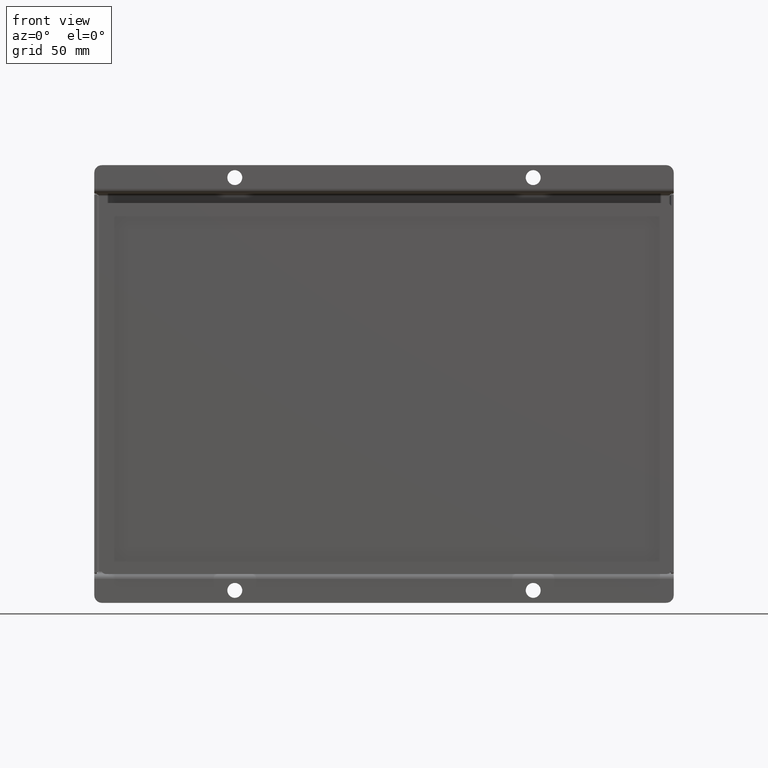
[diagram: clean part render]
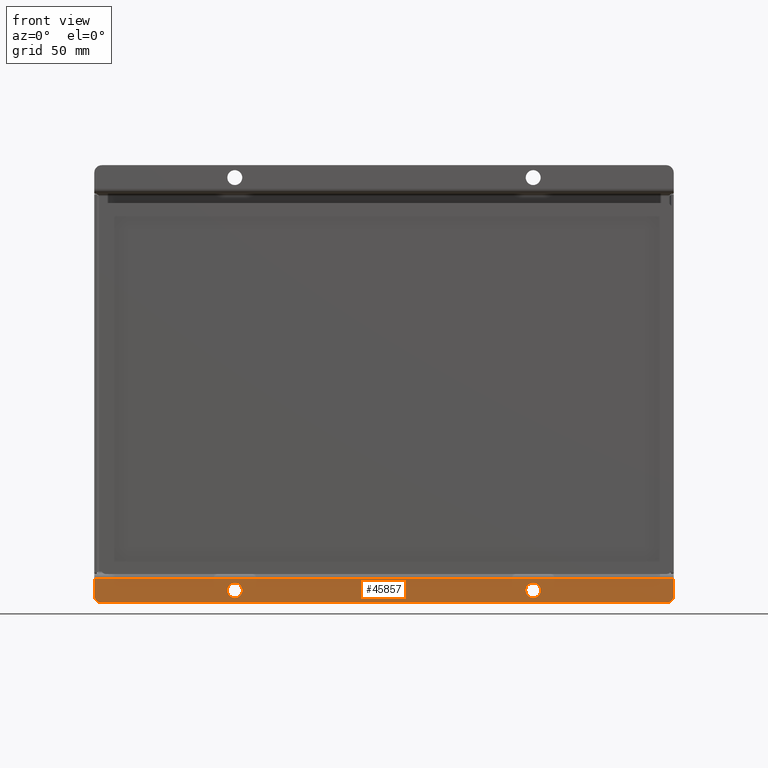
[diagram: same view with one face highlighted and labeled with its STEP entity id]
A machine part, front view. The second image highlights one B-rep face of the part: STEP entity #45857.
In plain terms, the highlighted planar face has unit normal (0, 1, 0).
Its self-contained STEP definition (entity closure, byte-faithful):
#1558=FACE_BOUND('',#8659,.T.);
#1559=FACE_BOUND('',#8660,.T.);
#3517=CIRCLE('',#49173,3.);
#3524=CIRCLE('',#49183,3.);
#3525=CIRCLE('',#49186,3.);
#3526=CIRCLE('',#49187,3.);
#3531=CIRCLE('',#49195,3.);
#3532=CIRCLE('',#49196,3.);
#5884=FACE_OUTER_BOUND('',#8658,.T.);
#8658=EDGE_LOOP('',(#37726,#37727,#37728,#37729,#37730,#37731));
#8659=EDGE_LOOP('',(#37732,#37733));
#8660=EDGE_LOOP('',(#37734,#37735));
#12556=LINE('',#79405,#16423);
#12562=LINE('',#79429,#16429);
#12579=LINE('',#79488,#16446);
#12581=LINE('',#79495,#16448);
#16423=VECTOR('',#59071,10.);
#16429=VECTOR('',#59095,10.);
#16446=VECTOR('',#59162,10.);
#16448=VECTOR('',#59170,1.44);
#20339=VERTEX_POINT('',#79392);
#20340=VERTEX_POINT('',#79393);
#20344=VERTEX_POINT('',#79403);
#20352=VERTEX_POINT('',#79423);
#20353=VERTEX_POINT('',#79427);
#20354=VERTEX_POINT('',#79431);
#20355=VERTEX_POINT('',#79432);
#20360=VERTEX_POINT('',#79449);
#20361=VERTEX_POINT('',#79450);
#20370=VERTEX_POINT('',#79487);
#26247=EDGE_CURVE('',#20339,#20340,#3517,.T.);
#26253=EDGE_CURVE('',#20344,#20339,#12556,.T.);
#26262=EDGE_CURVE('',#20352,#20344,#3524,.T.);
#26265=EDGE_CURVE('',#20353,#20352,#12562,.T.);
#26266=EDGE_CURVE('',#20354,#20355,#3525,.T.);
#26267=EDGE_CURVE('',#20355,#20354,#3526,.T.);
#26275=EDGE_CURVE('',#20360,#20361,#3531,.T.);
#26276=EDGE_CURVE('',#20361,#20360,#3532,.T.);
#26294=EDGE_CURVE('',#20353,#20370,#12579,.T.);
#26298=EDGE_CURVE('',#20340,#20370,#12581,.T.);
#37726=ORIENTED_EDGE('',*,*,#26247,.F.);
#37727=ORIENTED_EDGE('',*,*,#26253,.F.);
#37728=ORIENTED_EDGE('',*,*,#26262,.F.);
#37729=ORIENTED_EDGE('',*,*,#26265,.F.);
#37730=ORIENTED_EDGE('',*,*,#26294,.T.);
#37731=ORIENTED_EDGE('',*,*,#26298,.F.);
#37732=ORIENTED_EDGE('',*,*,#26266,.T.);
#37733=ORIENTED_EDGE('',*,*,#26267,.T.);
#37734=ORIENTED_EDGE('',*,*,#26275,.T.);
#37735=ORIENTED_EDGE('',*,*,#26276,.T.);
#41193=PLANE('',#49217);
#45857=ADVANCED_FACE('',(#5884,#1558,#1559),#41193,.F.);
#49173=AXIS2_PLACEMENT_3D('',#79394,#59061,#59062);
#49183=AXIS2_PLACEMENT_3D('',#79424,#59089,#59090);
#49186=AXIS2_PLACEMENT_3D('',#79433,#59098,#59099);
#49187=AXIS2_PLACEMENT_3D('',#79434,#59100,#59101);
#49195=AXIS2_PLACEMENT_3D('',#79451,#59119,#59120);
#49196=AXIS2_PLACEMENT_3D('',#79452,#59121,#59122);
#49217=AXIS2_PLACEMENT_3D('',#79505,#59182,#59183);
#59061=DIRECTION('center_axis',(5.15392353716788E-15,1.,8.1775072862643E-15));
#59062=DIRECTION('ref_axis',(-0.707106781186549,9.79858088358831E-15,-0.707106781186546));
#59071=DIRECTION('',(-1.,5.15718159233715E-15,1.91358618877914E-15));
#59089=DIRECTION('center_axis',(5.15392353716788E-15,1.,8.1775072862643E-15));
#59090=DIRECTION('ref_axis',(0.707106781186546,2.32396631684365E-15,-0.707106781186549));
#59095=DIRECTION('',(-2.07275007412298E-15,8.5474393438819E-15,-1.));
#59098=DIRECTION('center_axis',(5.15392353716788E-15,1.,8.1775072862643E-15));
#59099=DIRECTION('ref_axis',(-1.81496684985058E-15,-1.57401253609111E-15,
-1.));
#59100=DIRECTION('center_axis',(5.15392353716788E-15,1.,8.1775072862643E-15));
#59101=DIRECTION('ref_axis',(-1.81496684985058E-15,-1.57401253609111E-15,
-1.));
#59119=DIRECTION('center_axis',(5.15392353716788E-15,1.,8.1775072862643E-15));
#59120=DIRECTION('ref_axis',(-1.81496684985058E-15,-1.57401253609111E-15,
-1.));
#59121=DIRECTION('center_axis',(5.15392353716788E-15,1.,8.1775072862643E-15));
#59122=DIRECTION('ref_axis',(-1.81496684985058E-15,-1.57401253609111E-15,
-1.));
#59162=DIRECTION('',(-1.,5.15392353716786E-15,2.07275007412302E-15));
#59170=DIRECTION('',(1.85072150465993E-15,-8.51615309845384E-15,1.));
#59182=DIRECTION('center_axis',(5.15392353716788E-15,1.,8.1775072862643E-15));
#59183=DIRECTION('ref_axis',(1.,-5.15392353716786E-15,-2.29477864358606E-15));
#79392=CARTESIAN_POINT('',(-113.5,1.84630088995164E-12,-87.9999999999997));
#79393=CARTESIAN_POINT('',(-116.5,1.83186799063151E-12,-84.9999999999997));
#79394=CARTESIAN_POINT('Origin',(-113.5,1.83630888273001E-12,-84.9999999999997));
#79403=CARTESIAN_POINT('',(113.5,6.7612582199672E-13,-88.0000000000002));
#79405=CARTESIAN_POINT('',(116.5,6.60582699651968E-13,-88.0000000000002));
#79423=CARTESIAN_POINT('',(116.5,6.38378239159465E-13,-85.0000000000002));
#79424=CARTESIAN_POINT('Origin',(113.5,6.66133814775094E-13,-85.0000000000002));
#79427=CARTESIAN_POINT('',(116.5,5.81756864903582E-13,-78.4000000000003));
#79429=CARTESIAN_POINT('',(116.5,5.81756864903582E-13,-78.4000000000002));
#79431=CARTESIAN_POINT('',(-60.0000000000002,1.53432822003197E-12,-85.9999999999998));
#79432=CARTESIAN_POINT('',(-60.0000000000002,1.59178226155632E-12,-79.9999999999998));
#79433=CARTESIAN_POINT('Origin',(-60.0000000000002,1.58983937126322E-12,
-82.9999999999998));
#79434=CARTESIAN_POINT('Origin',(-60.0000000000002,1.58983937126322E-12,
-82.9999999999998));
#79449=CARTESIAN_POINT('',(59.9999999999998,8.03801469828613E-13,-86.0000000000001));
#79450=CARTESIAN_POINT('',(59.9999999999998,8.61255511352965E-13,-80.0000000000001));
#79451=CARTESIAN_POINT('Origin',(59.9999999999998,8.59312621059871E-13,
-83.0000000000001));
#79452=CARTESIAN_POINT('Origin',(59.9999999999998,8.59312621059871E-13,
-83.0000000000001));
#79487=CARTESIAN_POINT('',(-116.5,1.774136393351E-12,-78.3999999999998));
#79488=CARTESIAN_POINT('',(-2.8446980617969E-13,1.19571019752129E-12,-78.4));
#79495=CARTESIAN_POINT('',(-116.5,1.73749903353837E-12,-73.8761065788304));
#79505=CARTESIAN_POINT('Origin',(-2.9370556159626E-13,1.22568621918617E-12,
-82.0690266447076));